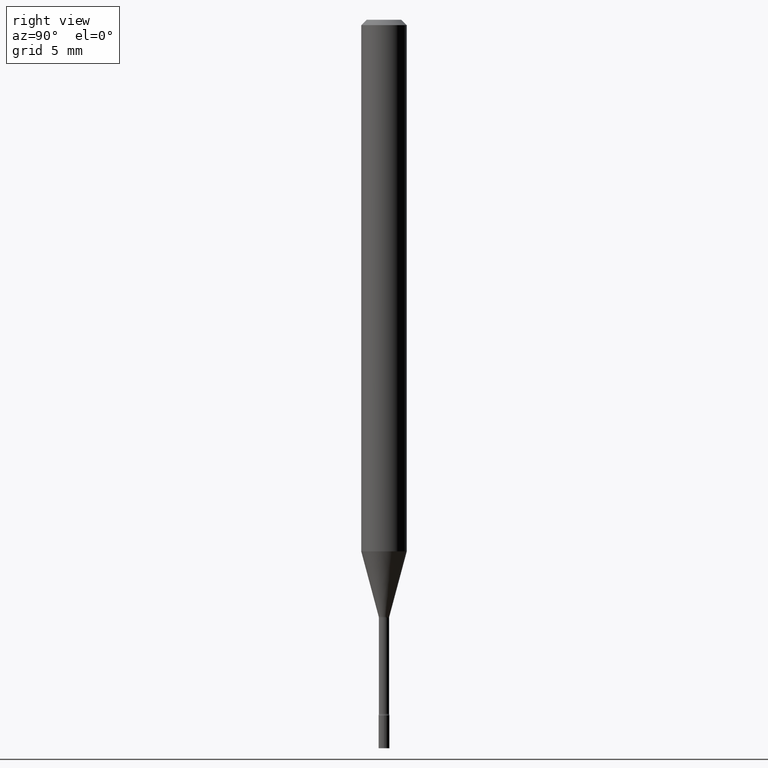
[diagram: clean part render]
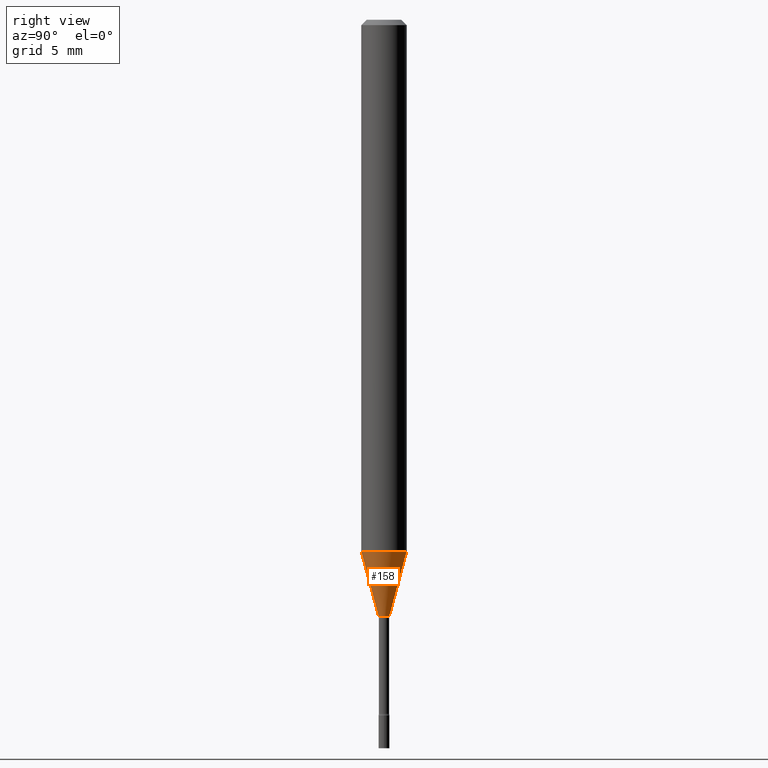
[diagram: same view with one face highlighted and labeled with its STEP entity id]
A machine part, right view. The second image highlights one B-rep face of the part: STEP entity #158.
In plain terms, the highlighted conical surface has half-angle 15 deg.
Its self-contained STEP definition (entity closure, byte-faithful):
#2 = DIRECTION ( 'NONE',  ( -2.445538114681118856E-29, 3.491382085132104190E-15, 1.000000000000000000 ) ) ;
#9 = EDGE_CURVE ( 'NONE', #383, #349, #507, .T. ) ;
#30 = CARTESIAN_POINT ( 'NONE',  ( -1.020288540047823140E-16, -0.01461111260566962632, -1.638092501787273392 ) ) ;
#57 = DIRECTION ( 'NONE',  ( -2.445538114681118856E-29, 3.491382085132104190E-15, 1.000000000000000000 ) ) ;
#71 = LINE ( 'NONE', #439, #390 ) ;
#77 = DIRECTION ( 'NONE',  ( 1.839019923739597160E-15, 0.2588190451025245142, 0.9659258262890673130 ) ) ;
#79 = CARTESIAN_POINT ( 'NONE',  ( 4.006017648494126314E-29, -5.719206814529315769E-15, -1.638092501787273392 ) ) ;
#95 = CARTESIAN_POINT ( 'NONE',  ( -1.020288540047823140E-16, -0.01461111260566962632, -1.638092501787273392 ) ) ;
#101 = DIRECTION ( 'NONE',  ( -6.982962677686265922E-15, -1.000000000000000000, 4.370956789862821150E-15 ) ) ;
#116 = ORIENTED_EDGE ( 'NONE', *, *, #9, .F. ) ;
#155 = AXIS2_PLACEMENT_3D ( 'NONE', #79, #2, #447 ) ;
#157 = ORIENTED_EDGE ( 'NONE', *, *, #246, .T. ) ;
#158 = ADVANCED_FACE ( 'NONE', ( #259 ), #496, .T. ) ;
#184 = DIRECTION ( 'NONE',  ( -1.807323732225326984E-15, -0.2588190451025177419, 0.9659258262890690894 ) ) ;
#187 = CIRCLE ( 'NONE', #155, 0.01461111260566390693 ) ;
#208 = AXIS2_PLACEMENT_3D ( 'NONE', #222, #382, #101 ) ;
#222 = CARTESIAN_POINT ( 'NONE',  ( 3.568941879278567028E-29, -5.095213877627770922E-15, -1.459368740913666640 ) ) ;
#231 = VERTEX_POINT ( 'NONE', #268 ) ;
#235 = CARTESIAN_POINT ( 'NONE',  ( 4.440892098500981149E-16, 0.06249999999999489991, -1.459368740913666862 ) ) ;
#246 = EDGE_CURVE ( 'NONE', #231, #349, #71, .T. ) ;
#252 = CARTESIAN_POINT ( 'NONE',  ( 4.006017648494126314E-29, -5.719206814529315769E-15, -1.638092501787273392 ) ) ;
#259 = FACE_OUTER_BOUND ( 'NONE', #436, .T. ) ;
#268 = CARTESIAN_POINT ( 'NONE',  ( 2.739537045417059006E-16, 0.01461111260565818581, -1.638092501787273392 ) ) ;
#272 = AXIS2_PLACEMENT_3D ( 'NONE', #252, #57, #342 ) ;
#276 = VERTEX_POINT ( 'NONE', #30 ) ;
#286 = CARTESIAN_POINT ( 'NONE',  ( -4.364351673553560721E-16, -0.06250000000000510703, -1.459368740913666196 ) ) ;
#311 = ORIENTED_EDGE ( 'NONE', *, *, #336, .F. ) ;
#336 = EDGE_CURVE ( 'NONE', #276, #383, #458, .T. ) ;
#342 = DIRECTION ( 'NONE',  ( -6.982962677686265922E-15, -1.000000000000000000, 0.000000000000000000 ) ) ;
#349 = VERTEX_POINT ( 'NONE', #235 ) ;
#352 = ORIENTED_EDGE ( 'NONE', *, *, #412, .T. ) ;
#382 = DIRECTION ( 'NONE',  ( -2.445538114681118856E-29, 3.491382085132104190E-15, 1.000000000000000000 ) ) ;
#383 = VERTEX_POINT ( 'NONE', #286 ) ;
#390 = VECTOR ( 'NONE', #77, 39.37007874015748143 ) ;
#412 = EDGE_CURVE ( 'NONE', #276, #231, #187, .T. ) ;
#436 = EDGE_LOOP ( 'NONE', ( #352, #157, #116, #311 ) ) ;
#439 = CARTESIAN_POINT ( 'NONE',  ( 1.038181992333132303E-16, 0.01461111260565818581, -1.638092501787273392 ) ) ;
#447 = DIRECTION ( 'NONE',  ( -6.982962677686265922E-15, -1.000000000000000000, 0.000000000000000000 ) ) ;
#458 = LINE ( 'NONE', #95, #465 ) ;
#465 = VECTOR ( 'NONE', #184, 39.37007874015748143 ) ;
#496 = CONICAL_SURFACE ( 'NONE', #272, 0.01461111260566390693, 0.2617993877991497964 ) ;
#507 = CIRCLE ( 'NONE', #208, 0.06250000000000000000 ) ;